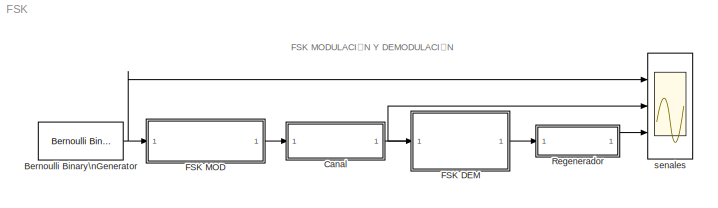
MODEL FSK
KIND model
BLOCK [Reference] Bernoulli Binary\nGenerator  REF=commrandsrc2/Bernoulli Binary\nGenerator
  DialogController = commDDGCreate
  DialogControllerArgs = DataTag0
  FunctionWithSeparateData = off
  P = 0.3
  Ports = [0, 1]
  RTWMemSecDataConstants = Inherit from model
  RTWMemSecDataInternal = Inherit from model
  RTWMemSecDataParameters = Inherit from model
  RTWMemSecFuncExecute = Inherit from model
  RTWMemSecFuncInitTerm = Inherit from model
  ShowPortLabels = FromPortIcon
  SourceBlock = commrandsrc2/Bernoulli Binary\nGenerator
  SourceType = Bernoulli Binary Generator
  SystemSampleTime = -1
  Ts = 5
  frameBased = off
  orient = off
  outDataType = double
  sampPerFrame = 1
  seed = 61
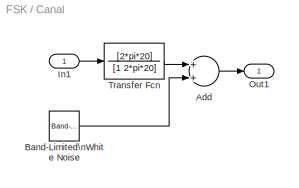
BLOCK [SubSystem] Canal
  FunctionWithSeparateData = off
  MaskHideContents = off
  MinAlgLoopOccurrences = off
  Opaque = off
  Ports = [1, 1]
  PropExecContextOutsideSubsystem = off
  RTWSystemCode = Auto
  RequestExecContextInheritance = off
BLOCK [Sum] Canal/Add
  InputSameDT = off
  OutDataType = sfix(16)
  OutDataTypeMode = Inherit via internal rule
  OutDataTypeStr = Inherit: Inherit via internal rule
  OutScaling = 2^-10
  Ports = [2, 1]
  SaturateOnIntegerOverflow = off
BLOCK [Reference] Canal/Band-Limited\nWhite Noise  REF=simulink/Sources/Band-Limited\nWhite Noise
  Cov = [0.002]
  FunctionWithSeparateData = off
  Ports = [0, 1]
  RTWMemSecDataConstants = Inherit from model
  RTWMemSecDataInternal = Inherit from model
  RTWMemSecDataParameters = Inherit from model
  RTWMemSecFuncExecute = Inherit from model
  RTWMemSecFuncInitTerm = Inherit from model
  ShowPortLabels = FromPortIcon
  SourceBlock = simulink/Sources/Band-Limited\nWhite Noise
  SourceType = Band-Limited White Noise.
  SystemSampleTime = -1
  Ts = 1
  VectorParams1D = on
  seed = [23341]
BLOCK [Inport] Canal/In1
  IconDisplay = Port number
BLOCK [Outport] Canal/Out1
  IconDisplay = Port number
BLOCK [TransferFcn] Canal/Transfer Fcn
  Denominator = [1 2*pi*20]
  Numerator = [2*pi*20]
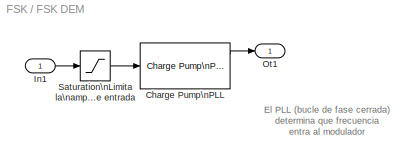
BLOCK [SubSystem] FSK DEM
  FunctionWithSeparateData = off
  MaskHideContents = off
  MinAlgLoopOccurrences = off
  Opaque = off
  Ports = [1, 1]
  PropExecContextOutsideSubsystem = off
  RTWSystemCode = Auto
  RequestExecContextInheritance = off
BLOCK [Reference] FSK DEM/Charge Pump\nPLL  REF=commsynccomp2/Charge Pump\nPLL
  Ac = 1
  Fc = 10
  Fd = [1   2*pi*1]
  Fn = [2*pi*1]
  FunctionWithSeparateData = off
  Kvco = 4
  Ph = 0
  Ports = [1, 3]
  RTWMemSecDataConstants = Inherit from model
  RTWMemSecDataInternal = Inherit from model
  RTWMemSecDataParameters = Inherit from model
  RTWMemSecFuncExecute = Inherit from model
  RTWMemSecFuncInitTerm = Inherit from model
  ShowPortLabels = FromPortIcon
  SourceBlock = commsynccomp2/Charge Pump\nPLL
  SourceType = Charge Pump PLL
  SystemSampleTime = -1
BLOCK [Inport] FSK DEM/In1
  IconDisplay = Port number
  OutDataType = sfix(16)
  OutScaling = 2^0
BLOCK [Outport] FSK DEM/Ot1
  IconDisplay = Port number
  OutDataType = sfix(16)
  OutScaling = 2^0
BLOCK [Saturate] FSK DEM/Saturation\nLimita la\namplitud de la\nseñal de entrada
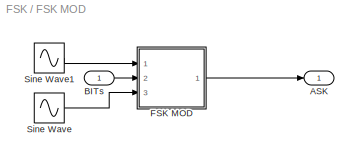
BLOCK [SubSystem] FSK MOD
  FunctionWithSeparateData = off
  MaskHideContents = off
  MinAlgLoopOccurrences = off
  Opaque = off
  Ports = [1, 1]
  PropExecContextOutsideSubsystem = off
  RTWSystemCode = Auto
  RequestExecContextInheritance = off
BLOCK [Outport] FSK MOD/ASK
  IconDisplay = Port number
  OutDataType = sfix(16)
  OutScaling = 2^0
BLOCK [Inport] FSK MOD/BITs
  IconDisplay = Port number
  OutDataType = sfix(16)
  OutScaling = 2^0
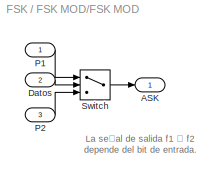
BLOCK [SubSystem] FSK MOD/FSK MOD
  FunctionWithSeparateData = off
  MaskHideContents = off
  MinAlgLoopOccurrences = off
  Opaque = off
  Ports = [3, 1]
  PropExecContextOutsideSubsystem = off
  RTWSystemCode = Auto
  RequestExecContextInheritance = off
BLOCK [Outport] FSK MOD/FSK MOD/ASK
  IconDisplay = Port number
  OutDataType = sfix(16)
  OutScaling = 2^0
BLOCK [Inport] FSK MOD/FSK MOD/Datos
  IconDisplay = Port number
  OutDataType = sfix(16)
  OutScaling = 2^0
  Port = 2
BLOCK [Inport] FSK MOD/FSK MOD/P1
  IconDisplay = Port number
  OutDataType = sfix(16)
  OutScaling = 2^0
BLOCK [Inport] FSK MOD/FSK MOD/P2
  IconDisplay = Port number
  OutDataType = sfix(16)
  OutScaling = 2^0
  Port = 3
BLOCK [Switch] FSK MOD/FSK MOD/Switch
  InputSameDT = off
  SaturateOnIntegerOverflow = off
  Threshold = 0.5
BLOCK [Sin] FSK MOD/Sine Wave
  Frequency = 2*pi*12
  Ports = [0, 1]
  SampleTime = 0.01
  Samples = 25
BLOCK [Sin] FSK MOD/Sine Wave1
  Frequency = 2*pi*8
  Ports = [0, 1]
  SampleTime = 0.01
  Samples = 50
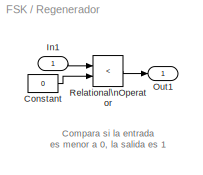
BLOCK [SubSystem] Regenerador
  FunctionWithSeparateData = off
  MaskHideContents = off
  MinAlgLoopOccurrences = off
  Opaque = off
  Ports = [1, 1]
  PropExecContextOutsideSubsystem = off
  RTWSystemCode = Auto
  RequestExecContextInheritance = off
BLOCK [Constant] Regenerador/Constant
  OutDataType = sfix(16)
  OutScaling = 2^0
  Value = 0
BLOCK [Inport] Regenerador/In1
  IconDisplay = Port number
  OutDataType = sfix(16)
  OutScaling = 2^0
BLOCK [Outport] Regenerador/Out1
  IconDisplay = Port number
  OutDataType = sfix(16)
  OutScaling = 2^0
BLOCK [RelationalOperator] Regenerador/Relational\nOperator
  InputSameDT = off
  LogicOutDataTypeMode = boolean
  Operator = <
  OutDataTypeStr = boolean
BLOCK [Scope] senales
  DataFormat = StructureWithTime
  Floating = off
  LimitDataPoints = off
  NumInputPorts = 3
  Ports = [3]
  SampleTime = 0
  YMax = 5~5~5
  YMin = -5~-5~-5
  ZoomMode = xonly
ANNOTATION (root): FSK MODULACIÓN Y DEMODULACIÓN
ANNOTATION FSK DEM: El PLL (bucle de fase cerrada)\ndetermina que frecuencia\nentra al modulador
ANNOTATION FSK MOD/FSK MOD: La señal de salida f1 ó f2\ndepende del bit de entrada.
ANNOTATION Regenerador: Compara si la entrada\nes menor a 0, la salida es 1
NET Bernoulli Binary\nGenerator:1 -> FSK MOD:1, senales:1
LINE Canal/Add:1 -> Canal/Out1:1
LINE Canal/Band-Limited\nWhite Noise:1 -> Canal/Add:2
LINE Canal/In1:1 -> Canal/Transfer Fcn:1
LINE Canal/Transfer Fcn:1 -> Canal/Add:1
NET Canal:1 -> FSK DEM:1, senales:2
LINE FSK DEM/Charge Pump\nPLL:1 -> FSK DEM/Ot1:1
LINE FSK DEM/In1:1 -> FSK DEM/Saturation\nLimita la\namplitud de la\nseñal de entrada:1
LINE FSK DEM/Saturation\nLimita la\namplitud de la\nseñal de entrada:1 -> FSK DEM/Charge Pump\nPLL:1
LINE FSK DEM:1 -> Regenerador:1
LINE FSK MOD/BITs:1 -> FSK MOD/FSK MOD:2
LINE FSK MOD/FSK MOD/Datos:1 -> FSK MOD/FSK MOD/Switch:2
LINE FSK MOD/FSK MOD/P1:1 -> FSK MOD/FSK MOD/Switch:1
LINE FSK MOD/FSK MOD/P2:1 -> FSK MOD/FSK MOD/Switch:3
LINE FSK MOD/FSK MOD/Switch:1 -> FSK MOD/FSK MOD/ASK:1
LINE FSK MOD/FSK MOD:1 -> FSK MOD/ASK:1
LINE FSK MOD/Sine Wave1:1 -> FSK MOD/FSK MOD:1
LINE FSK MOD/Sine Wave:1 -> FSK MOD/FSK MOD:3
LINE FSK MOD:1 -> Canal:1
LINE Regenerador/Constant:1 -> Regenerador/Relational\nOperator:2
LINE Regenerador/In1:1 -> Regenerador/Relational\nOperator:1
LINE Regenerador/Relational\nOperator:1 -> Regenerador/Out1:1
LINE Regenerador:1 -> senales:3
note: NET lines group one-source signal fan-out (src -> all destinations, sorted); 1:1 wires keep LINE
